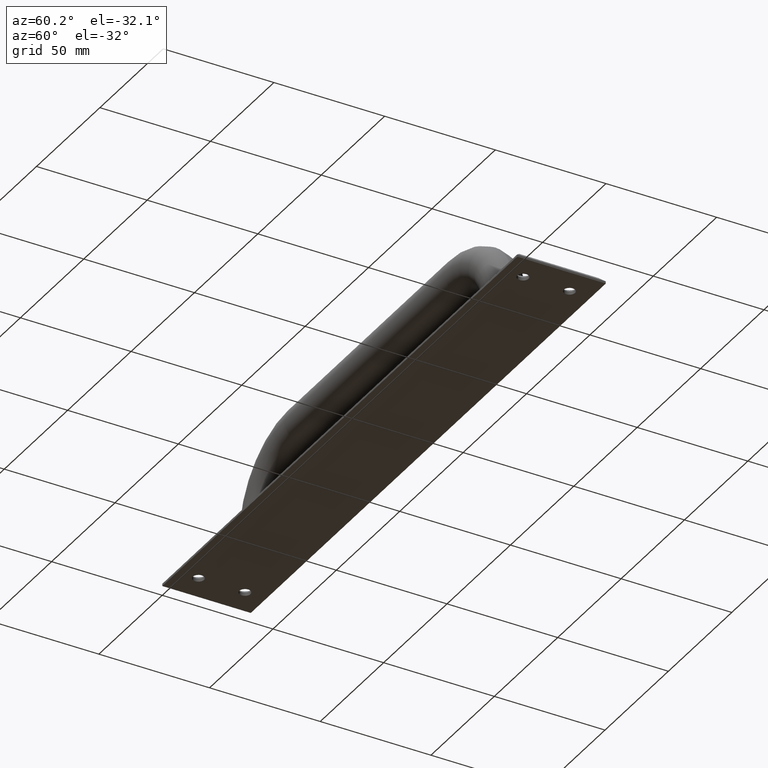
[diagram: clean part render]
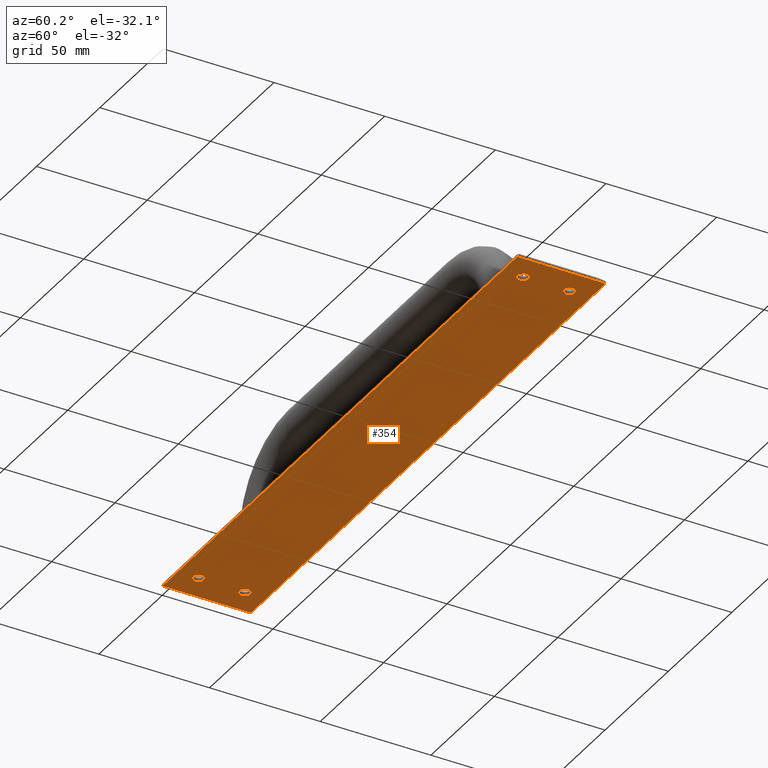
[diagram: same view with one face highlighted and labeled with its STEP entity id]
A machine part, auxiliary view. The second image highlights one B-rep face of the part: STEP entity #354.
In plain terms, the highlighted planar face has unit normal (0, 0, 1).
Its self-contained STEP definition (entity closure, byte-faithful):
#27=LINE('',#579,#47);
#30=LINE('',#585,#50);
#33=LINE('',#590,#53);
#34=LINE('',#592,#54);
#47=VECTOR('',#484,40.);
#50=VECTOR('',#489,40.);
#53=VECTOR('',#496,280.);
#54=VECTOR('',#499,280.);
#64=PLANE('',#397);
#90=FACE_BOUND('',#159,.T.);
#91=FACE_BOUND('',#160,.T.);
#92=FACE_BOUND('',#161,.T.);
#93=FACE_BOUND('',#162,.T.);
#116=FACE_OUTER_BOUND('',#158,.T.);
#158=EDGE_LOOP('',(#317,#318,#319,#320));
#159=EDGE_LOOP('',(#321));
#160=EDGE_LOOP('',(#322));
#161=EDGE_LOOP('',(#323));
#162=EDGE_LOOP('',(#324));
#171=CIRCLE('',#372,2.5);
#174=CIRCLE('',#377,2.5);
#177=CIRCLE('',#382,2.5);
#180=CIRCLE('',#387,2.5);
#189=VERTEX_POINT('',#526);
#192=VERTEX_POINT('',#534);
#195=VERTEX_POINT('',#542);
#198=VERTEX_POINT('',#550);
#207=VERTEX_POINT('',#576);
#208=VERTEX_POINT('',#578);
#209=VERTEX_POINT('',#582);
#210=VERTEX_POINT('',#584);
#219=EDGE_CURVE('',#189,#189,#171,.T.);
#222=EDGE_CURVE('',#192,#192,#174,.T.);
#225=EDGE_CURVE('',#195,#195,#177,.T.);
#228=EDGE_CURVE('',#198,#198,#180,.T.);
#241=EDGE_CURVE('',#207,#208,#27,.T.);
#244=EDGE_CURVE('',#209,#210,#30,.T.);
#247=EDGE_CURVE('',#208,#209,#33,.T.);
#248=EDGE_CURVE('',#210,#207,#34,.T.);
#317=ORIENTED_EDGE('',*,*,#248,.F.);
#318=ORIENTED_EDGE('',*,*,#244,.F.);
#319=ORIENTED_EDGE('',*,*,#247,.F.);
#320=ORIENTED_EDGE('',*,*,#241,.F.);
#321=ORIENTED_EDGE('',*,*,#219,.T.);
#322=ORIENTED_EDGE('',*,*,#222,.T.);
#323=ORIENTED_EDGE('',*,*,#225,.T.);
#324=ORIENTED_EDGE('',*,*,#228,.T.);
#354=ADVANCED_FACE('',(#116,#90,#91,#92,#93),#64,.F.);
#372=AXIS2_PLACEMENT_3D('',#527,#430,#431);
#377=AXIS2_PLACEMENT_3D('',#535,#440,#441);
#382=AXIS2_PLACEMENT_3D('',#543,#450,#451);
#387=AXIS2_PLACEMENT_3D('',#551,#460,#461);
#397=AXIS2_PLACEMENT_3D('',#593,#500,#501);
#430=DIRECTION('center_axis',(0.,0.,1.));
#431=DIRECTION('ref_axis',(1.,0.,0.));
#440=DIRECTION('center_axis',(0.,0.,1.));
#441=DIRECTION('ref_axis',(1.,0.,0.));
#450=DIRECTION('center_axis',(0.,0.,1.));
#451=DIRECTION('ref_axis',(1.,0.,0.));
#460=DIRECTION('center_axis',(0.,0.,1.));
#461=DIRECTION('ref_axis',(1.,0.,0.));
#484=DIRECTION('',(0.,1.,0.));
#489=DIRECTION('',(3.67548784903353E-16,-1.,0.));
#496=DIRECTION('',(-1.,1.26882631385732E-16,0.));
#499=DIRECTION('',(1.,1.40868018789466E-32,0.));
#500=DIRECTION('center_axis',(0.,0.,1.));
#501=DIRECTION('ref_axis',(1.,0.,0.));
#526=CARTESIAN_POINT('',(9.49999999999998,9.50000000000001,0.));
#527=CARTESIAN_POINT('Origin',(12.,9.50000000000001,0.));
#534=CARTESIAN_POINT('',(9.49999999999998,30.5,0.));
#535=CARTESIAN_POINT('Origin',(12.,30.5,0.));
#542=CARTESIAN_POINT('',(265.5,30.5,0.));
#543=CARTESIAN_POINT('Origin',(268.,30.5,0.));
#550=CARTESIAN_POINT('',(265.5,9.50000000000001,0.));
#551=CARTESIAN_POINT('Origin',(268.,9.50000000000001,0.));
#576=CARTESIAN_POINT('',(280.,3.94430452610506E-30,0.));
#578=CARTESIAN_POINT('',(280.,40.,0.));
#579=CARTESIAN_POINT('',(280.,3.94430452610506E-30,0.));
#582=CARTESIAN_POINT('',(-1.47019513961341E-14,40.,0.));
#584=CARTESIAN_POINT('',(0.,0.,0.));
#585=CARTESIAN_POINT('',(-1.47019513961341E-14,40.,0.));
#590=CARTESIAN_POINT('',(280.,40.,0.));
#592=CARTESIAN_POINT('',(0.,0.,0.));
#593=CARTESIAN_POINT('Origin',(140.,20.,0.));